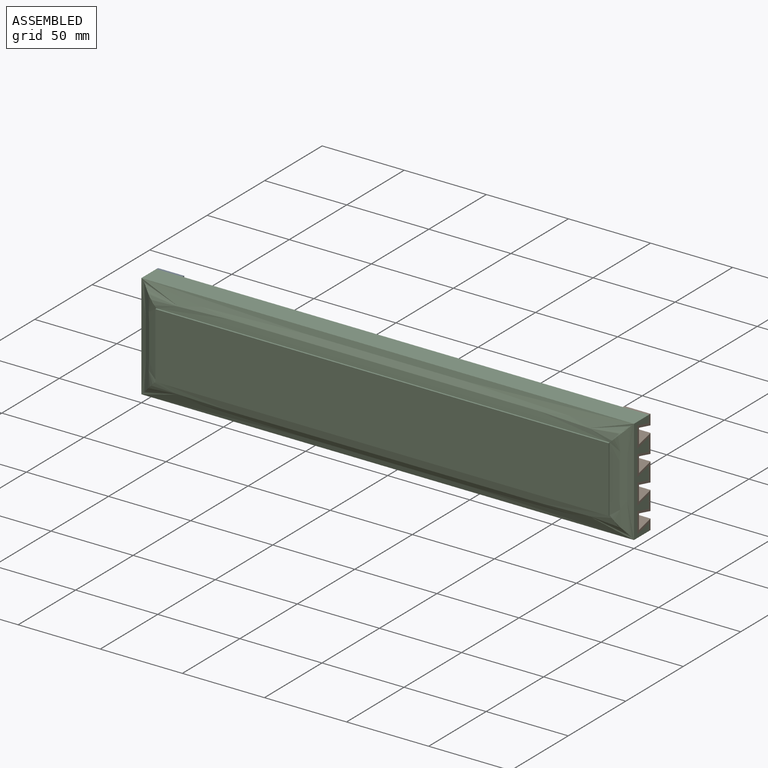
[diagram: assembled view]
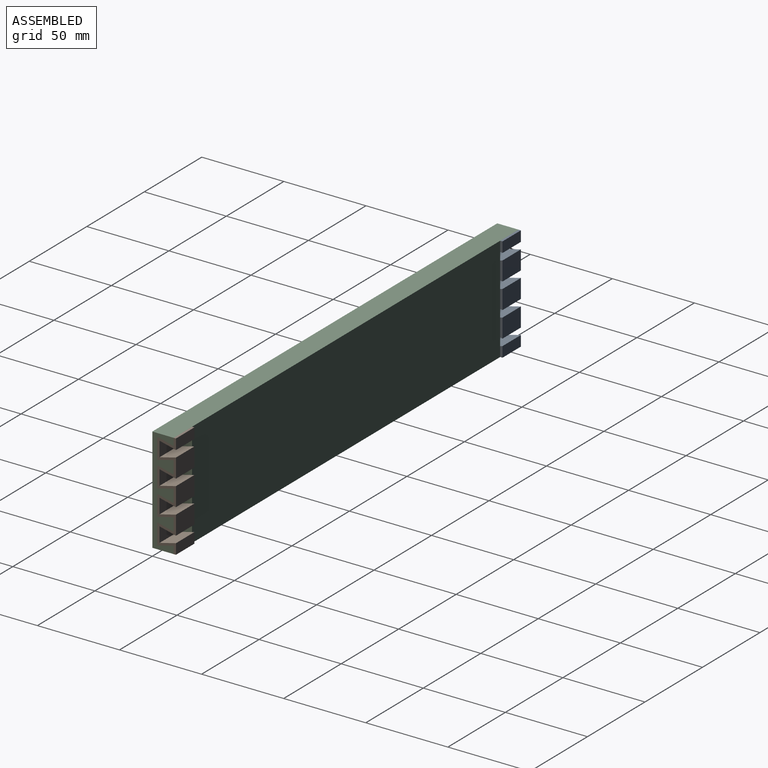
[diagram: assembled view, second angle]
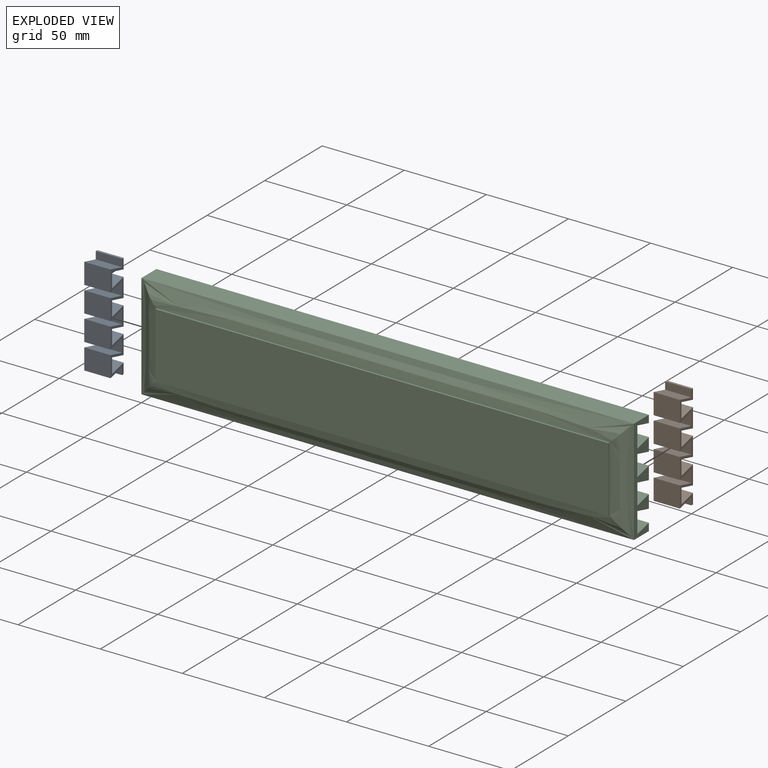
[diagram: exploded view]
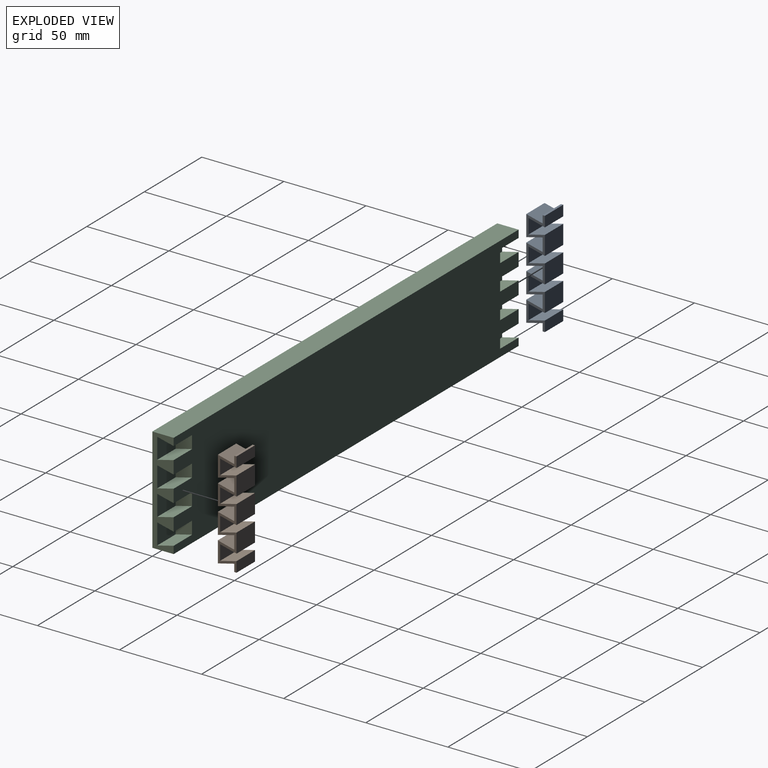
[diagram: exploded view, second angle]
ASSEMBLY  parts=3 mates=6
PART A: 38 faces, bbox 16x11.4x64 mm
  f0: plane 16x10mm, normal (0,-0.24,0.97), area 164.9mm2, adj f1,f35,f36,f37
  f1: plane 16x4.57mm, normal (0,1,0), area 73.2mm2, adj f0,f2,f36,f37
  f2: plane 16x1.4mm, normal (0,0,1), area 22.4mm2, adj f1,f3,f36,f37
  f3: plane 16x6.37mm, normal (0,-1,0), area 101.8mm2, adj f2,f4,f36,f37
  f4: plane 16x10mm, normal (0,0.24,-0.97), area 164.9mm2, adj f3,f5,f36,f37
  f5: plane 16x9.12mm, normal (0,-1,0), area 145.9mm2, adj f4,f6,f36,f37
  f6: plane 16x10mm, normal (0,0.24,0.97), area 164.9mm2, adj f5,f7,f36,f37
  f7: plane 16x11.58mm, normal (0,-1,0), area 185.3mm2, adj f6,f8,f36,f37
  f8: plane 16x10mm, normal (0,0.24,-0.97), area 164.9mm2, adj f7,f9,f36,f37
  f9: plane 16x9.12mm, normal (0,-1,0), area 145.9mm2, adj f8,f10,f36,f37
  f10: plane 16x10mm, normal (0,0.24,0.97), area 164.9mm2, adj f9,f11,f36,f37
  f11: plane 16x11.58mm, normal (0,-1,0), area 185.3mm2, adj f10,f12,f36,f37
  f12: plane 16x10mm, normal (0,0.24,-0.97), area 164.9mm2, adj f11,f13,f36,f37
  f13: plane 16x9.12mm, normal (0,-1,0), area 145.9mm2, adj f12,f14,f36,f37
  f14: plane 16x10mm, normal (0,0.24,0.97), area 164.9mm2, adj f13,f15,f36,f37
  f15: plane 16x11.58mm, normal (0,-1,0), area 185.3mm2, adj f14,f16,f36,f37
  f16: plane 16x10mm, normal (0,0.24,-0.97), area 164.9mm2, adj f15,f17,f36,f37
  f17: plane 16x9.12mm, normal (0,-1,0), area 145.9mm2, adj f16,f18,f36,f37
  f18: plane 16x10mm, normal (0,0.24,0.97), area 164.9mm2, adj f17,f19,f36,f37
  f19: plane 16x6.37mm, normal (0,-1,0), area 101.8mm2, adj f18,f20,f36,f37
  f20: plane 16x1.4mm, normal (0,0,-1), area 22.4mm2, adj f19,f21,f36,f37
  f21: plane 16x4.57mm, normal (0,1,0), area 73.2mm2, adj f20,f22,f36,f37
  f22: plane 16x10mm, normal (0,-0.24,-0.97), area 164.9mm2, adj f21,f23,f36,f37
  f23: plane 16x12.7mm, normal (0,1,0), area 203.2mm2, adj f22,f24,f36,f37
  f24: plane 16x10mm, normal (0,-0.24,0.97), area 164.9mm2, adj f23,f25,f36,f37
  f25: plane 16x8mm, normal (0,1,0), area 128mm2, adj f24,f26,f36,f37
  f26: plane 16x10mm, normal (0,-0.24,-0.97), area 164.9mm2, adj f25,f27,f36,f37
  f27: plane 16x12.7mm, normal (0,1,0), area 203.2mm2, adj f26,f28,f36,f37
  f28: plane 16x10mm, normal (0,-0.24,0.97), area 164.9mm2, adj f27,f29,f36,f37
  f29: plane 16x8mm, normal (0,1,0), area 128mm2, adj f28,f30,f36,f37
  f30: plane 16x10mm, normal (0,-0.24,-0.97), area 164.9mm2, adj f29,f31,f36,f37
  f31: plane 16x12.7mm, normal (0,1,0), area 203.2mm2, adj f30,f32,f36,f37
  f32: plane 16x10mm, normal (0,-0.24,0.97), area 164.9mm2, adj f31,f33,f36,f37
  f33: plane 16x8mm, normal (0,1,0), area 128mm2, adj f32,f34,f36,f37
  f34: plane 16x10mm, normal (0,-0.24,-0.97), area 164.9mm2, adj f33,f35,f36,f37
  f35: plane 16x12.7mm, normal (0,1,0), area 203.2mm2, adj f0,f34,f36,f37
  f36: plane 64x11.4mm, normal (1,0,0), area 233mm2, adj f0,f1,f2,f3,f4,f5,f6,f7
  f37: plane 64x11.4mm, normal (-1,0,0), area 233mm2, adj f0,f1,f2,f3,f4,f5,f6,f7
PART B: same geometry as A
PART C: 46 faces, bbox 300x18x64 mm
  f0: plane 300x64mm, normal (0,1,0), area 18212.7mm2, adj f4,f5,f6,f11,f13,f14,f15,f17
  f1: plane 276x40mm, normal (0,-1,0), area 11040mm2, adj f2,f7,f9,f27
  f2: plane 40x1mm, normal (-1,0,0), area 40mm2, adj f1,f3,f7,f9
  f3: extruded ~64x12mm, area 670.7mm2, adj f2,f6,f8,f10
  f4: plane 300x13mm, normal (0,0,-1), area 3900mm2, adj f0,f6,f10,f29
  f5: plane 300x13mm, normal (0,0,1), area 3900mm2, adj f0,f6,f8,f29
  f6: plane 64x13mm, normal (-1,0,0), area 423.7mm2, adj f0,f3,f4,f5,f11,f12,f13,f15
  f7: plane 276x1mm, normal (0,0,1), area 276mm2, adj f1,f2,f8,f27
  f8: extruded ~300x12mm, area 3705.7mm2, adj f3,f5,f7,f28
  f9: plane 276x1mm, normal (0,0,-1), area 276mm2, adj f1,f2,f10,f27
  f10: extruded ~300x12mm, area 3705.7mm2, adj f3,f4,f9,f28
  f11: plane 16x10mm, normal (0,-0.24,0.97), area 164.9mm2, adj f0,f6,f12,f14
  f12: plane 16x12.7mm, normal (0,1,0), area 203.2mm2, adj f6,f11,f13,f14
  f13: plane 16x10mm, normal (0,-0.24,-0.97), area 164.9mm2, adj f0,f6,f12,f14
  f14: plane 12.7x10mm, normal (-1,0,0), area 102.1mm2, adj f0,f11,f12,f13
  f15: plane 16x10mm, normal (0,-0.24,0.97), area 164.9mm2, adj f0,f6,f16,f18
  f16: plane 16x12.7mm, normal (0,1,0), area 203.2mm2, adj f6,f15,f17,f18
  f17: plane 16x10mm, normal (0,-0.24,-0.97), area 164.9mm2, adj f0,f6,f16,f18
  f18: plane 12.7x10mm, normal (-1,0,0), area 102.1mm2, adj f0,f15,f16,f17
  f19: plane 16x12.7mm, normal (0,1,0), area 203.2mm2, adj f6,f20,f21,f22
  f20: plane 16x10mm, normal (0,-0.24,-0.97), area 164.9mm2, adj f0,f6,f19,f22
  f21: plane 16x10mm, normal (0,-0.24,0.97), area 164.9mm2, adj f0,f6,f19,f22
  f22: plane 12.7x10mm, normal (-1,0,0), area 102.1mm2, adj f0,f19,f20,f21
  f23: plane 16x10mm, normal (0,-0.24,0.97), area 164.9mm2, adj f0,f6,f24,f26
  f24: plane 16x12.7mm, normal (0,1,0), area 203.2mm2, adj f6,f23,f25,f26
  f25: plane 16x10mm, normal (0,-0.24,-0.97), area 164.9mm2, adj f0,f6,f24,f26
  f26: plane 12.7x10mm, normal (-1,0,0), area 102.1mm2, adj f0,f23,f24,f25
  f27: plane 40x1mm, normal (1,0,0), area 40mm2, adj f1,f7,f9,f28
  f28: extruded ~64x12mm, area 670.7mm2, adj f8,f10,f27,f29
  f29: plane 64x13mm, normal (1,0,0), area 423.7mm2, adj f0,f4,f5,f28,f30,f31,f32,f34
  f30: plane 16x10mm, normal (0,-0.24,0.97), area 164.9mm2, adj f0,f29,f31,f33
  f31: plane 16x12.7mm, normal (0,1,0), area 203.2mm2, adj f29,f30,f32,f33
  f32: plane 16x10mm, normal (0,-0.24,-0.97), area 164.9mm2, adj f0,f29,f31,f33
  f33: plane 12.7x10mm, normal (1,0,0), area 102.1mm2, adj f0,f30,f31,f32
  f34: plane 16x10mm, normal (0,-0.24,0.97), area 164.9mm2, adj f0,f29,f35,f37
  f35: plane 16x12.7mm, normal (0,1,0), area 203.2mm2, adj f29,f34,f36,f37
  f36: plane 16x10mm, normal (0,-0.24,-0.97), area 164.9mm2, adj f0,f29,f35,f37
  f37: plane 12.7x10mm, normal (1,0,0), area 102.1mm2, adj f0,f34,f35,f36
  f38: plane 16x12.7mm, normal (0,1,0), area 203.2mm2, adj f29,f39,f40,f41
  f39: plane 16x10mm, normal (0,-0.24,-0.97), area 164.9mm2, adj f0,f29,f38,f41
  f40: plane 16x10mm, normal (0,-0.24,0.97), area 164.9mm2, adj f0,f29,f38,f41
  f41: plane 12.7x10mm, normal (1,0,0), area 102.1mm2, adj f0,f38,f39,f40
  f42: plane 16x10mm, normal (0,-0.24,0.97), area 164.9mm2, adj f0,f29,f43,f45
  f43: plane 16x12.7mm, normal (0,1,0), area 203.2mm2, adj f29,f42,f44,f45
  f44: plane 16x10mm, normal (0,-0.24,-0.97), area 164.9mm2, adj f0,f29,f43,f45
  f45: plane 12.7x10mm, normal (1,0,0), area 102.1mm2, adj f0,f42,f43,f44
PLACE A rot(axis=(-1,0,0),180deg) t=(0,102.66,91.09)mm
PLACE B rot(axis=(0,0,1),180deg) t=(300,102.66,-27.09)mm
PLACE C t=(0,31,-64)mm
MATE planar C.f31 <-> B.f35  axis (0,1,0) through (292,3,55.57)mm
MATE planar A.f35 <-> C.f12  axis (0,-1,0) through (8,3,8.43)mm
MATE planar B.f37 <-> C.f29  axis (1,0,0) through (300,13,59.43)mm
MATE planar A.f37 <-> C.f6  axis (-1,0,0) through (0,4.4,60.13)mm
MATE planar A.f20 <-> C.f5  axis (0,0,1) through (8,13.7,64)mm
MATE planar B.f2 <-> C.f5  axis (0,0,1) through (292,13.7,64)mm
